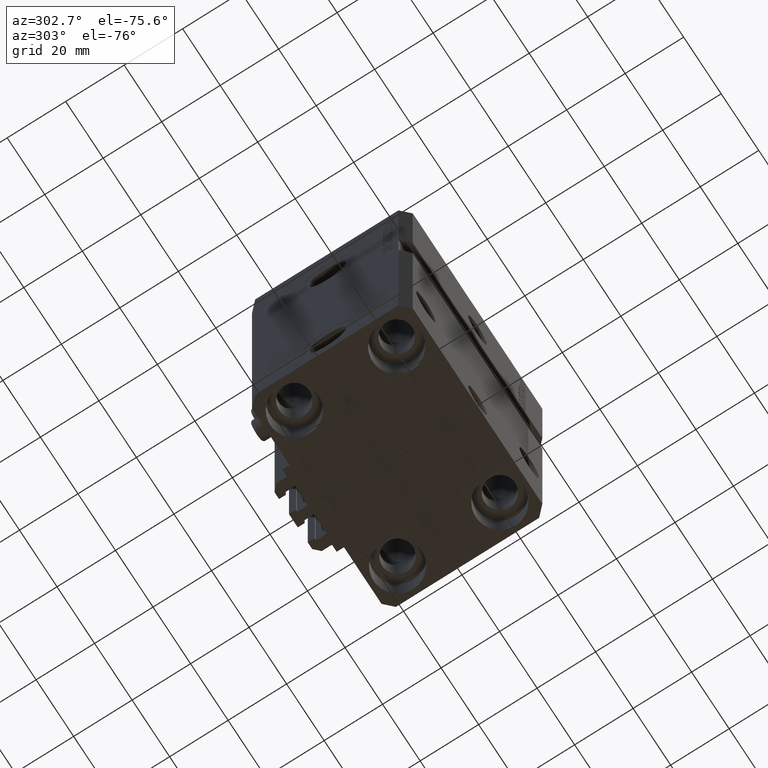
[diagram: clean part render]
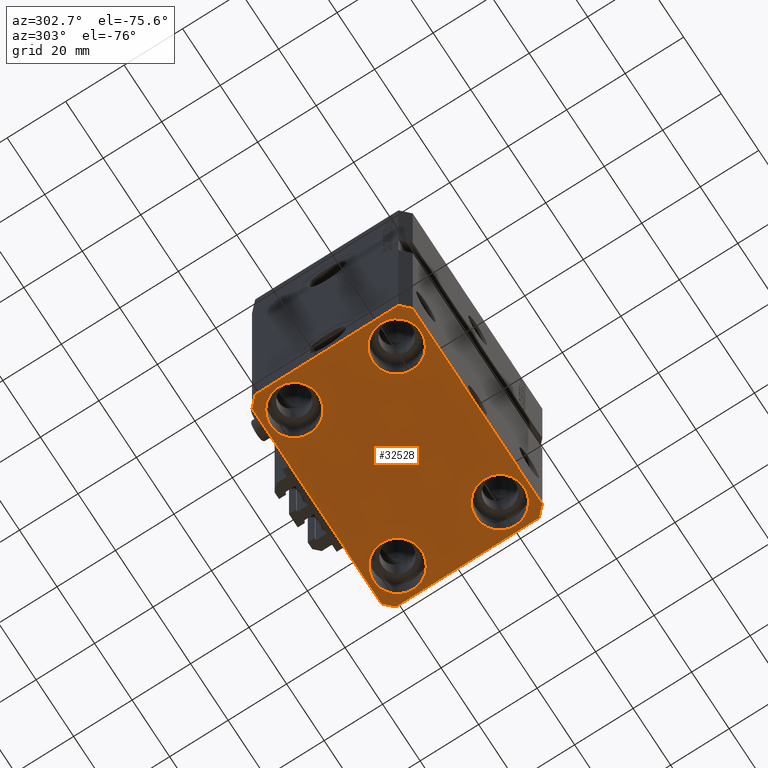
[diagram: same view with one face highlighted and labeled with its STEP entity id]
A machine part, auxiliary view. The second image highlights one B-rep face of the part: STEP entity #32528.
In plain terms, the highlighted planar face has unit normal (0, 0, 1).
Its self-contained STEP definition (entity closure, byte-faithful):
#74 = VECTOR ( 'NONE', #9574, 1000.000000000000000 ) ;
#427 = ORIENTED_EDGE ( 'NONE', *, *, #6526, .F. ) ;
#574 = VERTEX_POINT ( 'NONE', #12457 ) ;
#763 = CARTESIAN_POINT ( 'NONE',  ( -37.49999999999999289, -24.50000000000000000, -110.0000000000000000 ) ) ;
#1101 = CARTESIAN_POINT ( 'NONE',  ( -34.49999999999999289, 27.50000000000000000, -110.0000000000000000 ) ) ;
#1494 = CARTESIAN_POINT ( 'NONE',  ( -37.49999999999999289, -24.50000000000000000, -110.0000000000000000 ) ) ;
#1673 = CARTESIAN_POINT ( 'NONE',  ( 35.75000000000000711, -17.50000000000000000, -110.0000000000000000 ) ) ;
#2033 = VERTEX_POINT ( 'NONE', #32336 ) ;
#2881 = DIRECTION ( 'NONE',  ( 1.000000000000000000, 0.000000000000000000, 0.000000000000000000 ) ) ;
#2912 = ORIENTED_EDGE ( 'NONE', *, *, #33760, .T. ) ;
#3449 = CARTESIAN_POINT ( 'NONE',  ( -35.75000000000000711, -17.50000000000000000, -110.0000000000000000 ) ) ;
#3776 = EDGE_CURVE ( 'NONE', #41774, #2033, #34781, .T. ) ;
#3999 = FACE_BOUND ( 'NONE', #33641, .T. ) ;
#4011 = CARTESIAN_POINT ( 'NONE',  ( -34.49999999999998579, -27.49999999999999645, -110.0000000000000000 ) ) ;
#4532 = VECTOR ( 'NONE', #14556, 1000.000000000000000 ) ;
#4538 = LINE ( 'NONE', #38543, #32400 ) ;
#4619 = AXIS2_PLACEMENT_3D ( 'NONE', #6695, #10751, #40700 ) ;
#4689 = EDGE_CURVE ( 'NONE', #25560, #24895, #4538, .T. ) ;
#5194 = LINE ( 'NONE', #22932, #4532 ) ;
#5530 = CIRCLE ( 'NONE', #30662, 8.250000000000000000 ) ;
#5557 = DIRECTION ( 'NONE',  ( 1.000000000000000000, 0.000000000000000000, 0.000000000000000000 ) ) ;
#5605 = EDGE_CURVE ( 'NONE', #24895, #20968, #9606, .T. ) ;
#5787 = CIRCLE ( 'NONE', #17132, 8.249999999999992895 ) ;
#5964 = CARTESIAN_POINT ( 'NONE',  ( 27.50000000000000355, -17.50000000000000000, -110.0000000000000000 ) ) ;
#6015 = LINE ( 'NONE', #44315, #74 ) ;
#6319 = ORIENTED_EDGE ( 'NONE', *, *, #5605, .F. ) ;
#6406 = CARTESIAN_POINT ( 'NONE',  ( -19.25000000000000355, 17.50000000000000000, -110.0000000000000000 ) ) ;
#6526 = EDGE_CURVE ( 'NONE', #47091, #40100, #40112, .T. ) ;
#6631 = AXIS2_PLACEMENT_3D ( 'NONE', #30274, #49045, #2881 ) ;
#6695 = CARTESIAN_POINT ( 'NONE',  ( -27.50000000000000355, -17.50000000000000000, -110.0000000000000000 ) ) ;
#7135 = EDGE_CURVE ( 'NONE', #2033, #41774, #7430, .T. ) ;
#7430 = CIRCLE ( 'NONE', #6631, 8.250000000000000000 ) ;
#9454 = CARTESIAN_POINT ( 'NONE',  ( -34.49999999999998579, -27.49999999999999645, -110.0000000000000000 ) ) ;
#9574 = DIRECTION ( 'NONE',  ( -1.000000000000000000, 0.000000000000000000, 0.000000000000000000 ) ) ;
#9606 = LINE ( 'NONE', #1494, #12969 ) ;
#10216 = ORIENTED_EDGE ( 'NONE', *, *, #43277, .T. ) ;
#10729 = CARTESIAN_POINT ( 'NONE',  ( 37.50000000000051870, 24.49999999999995381, -110.0000000000000000 ) ) ;
#10751 = DIRECTION ( 'NONE',  ( -0.000000000000000000, -0.000000000000000000, 1.000000000000000000 ) ) ;
#11398 = DIRECTION ( 'NONE',  ( 0.000000000000000000, -1.000000000000000000, 0.000000000000000000 ) ) ;
#11750 = CARTESIAN_POINT ( 'NONE',  ( -37.49999999999999289, 24.50000000000000000, -110.0000000000000000 ) ) ;
#11857 = PLANE ( 'NONE',  #39952 ) ;
#12457 = CARTESIAN_POINT ( 'NONE',  ( -19.25000000000000355, -17.50000000000000000, -110.0000000000000000 ) ) ;
#12969 = VECTOR ( 'NONE', #17220, 1000.000000000000000 ) ;
#13221 = DIRECTION ( 'NONE',  ( 0.7071067811865474617, 0.7071067811865474617, 0.000000000000000000 ) ) ;
#13635 = CARTESIAN_POINT ( 'NONE',  ( -27.50000000000000355, 17.50000000000000000, -110.0000000000000000 ) ) ;
#14556 = DIRECTION ( 'NONE',  ( 1.076236605503979380E-14, 1.000000000000000000, 0.000000000000000000 ) ) ;
#14583 = VECTOR ( 'NONE', #13221, 1000.000000000000114 ) ;
#14831 = DIRECTION ( 'NONE',  ( -0.000000000000000000, -0.000000000000000000, 1.000000000000000000 ) ) ;
#15094 = ORIENTED_EDGE ( 'NONE', *, *, #19192, .T. ) ;
#15162 = FACE_BOUND ( 'NONE', #31225, .T. ) ;
#16526 = VERTEX_POINT ( 'NONE', #49862 ) ;
#16754 = CIRCLE ( 'NONE', #4619, 8.250000000000000000 ) ;
#16884 = AXIS2_PLACEMENT_3D ( 'NONE', #13635, #14831, #34596 ) ;
#17132 = AXIS2_PLACEMENT_3D ( 'NONE', #39658, #20395, #24454 ) ;
#17220 = DIRECTION ( 'NONE',  ( 0.7071067811865483499, -0.7071067811865466846, 0.000000000000000000 ) ) ;
#17334 = EDGE_CURVE ( 'NONE', #45841, #49371, #41801, .T. ) ;
#17449 = ORIENTED_EDGE ( 'NONE', *, *, #22625, .T. ) ;
#17458 = ORIENTED_EDGE ( 'NONE', *, *, #7135, .T. ) ;
#17556 = EDGE_CURVE ( 'NONE', #40100, #20591, #5194, .T. ) ;
#19192 = EDGE_CURVE ( 'NONE', #47591, #574, #41063, .T. ) ;
#19483 = CARTESIAN_POINT ( 'NONE',  ( 0.000000000000000000, 0.000000000000000000, -110.0000000000000000 ) ) ;
#19515 = ORIENTED_EDGE ( 'NONE', *, *, #3776, .T. ) ;
#19974 = FACE_OUTER_BOUND ( 'NONE', #21503, .T. ) ;
#20331 = CARTESIAN_POINT ( 'NONE',  ( 34.50000000000056843, 27.50000000000000000, -110.0000000000000000 ) ) ;
#20395 = DIRECTION ( 'NONE',  ( -0.000000000000000000, -0.000000000000000000, 1.000000000000000000 ) ) ;
#20591 = VERTEX_POINT ( 'NONE', #27057 ) ;
#20968 = VERTEX_POINT ( 'NONE', #9454 ) ;
#21006 = AXIS2_PLACEMENT_3D ( 'NONE', #5964, #36663, #35906 ) ;
#21045 = CARTESIAN_POINT ( 'NONE',  ( -27.50000000000000355, 17.50000000000000000, -110.0000000000000000 ) ) ;
#21248 = DIRECTION ( 'NONE',  ( 1.000000000000000000, 0.000000000000000000, 0.000000000000000000 ) ) ;
#21503 = EDGE_LOOP ( 'NONE', ( #30377, #47569, #23022, #427, #44272, #6319, #45262, #33620 ) ) ;
#21567 = DIRECTION ( 'NONE',  ( -0.7071067811865471286, -0.7071067811865479058, 0.000000000000000000 ) ) ;
#22625 = EDGE_CURVE ( 'NONE', #16526, #50101, #46864, .T. ) ;
#22760 = ORIENTED_EDGE ( 'NONE', *, *, #36855, .T. ) ;
#22932 = CARTESIAN_POINT ( 'NONE',  ( 37.49999999999999289, -24.50000000000000000, -110.0000000000000000 ) ) ;
#23022 = ORIENTED_EDGE ( 'NONE', *, *, #17556, .F. ) ;
#23098 = EDGE_LOOP ( 'NONE', ( #15094, #2912 ) ) ;
#24149 = CARTESIAN_POINT ( 'NONE',  ( 34.49999999999999289, -27.49999999999999645, -110.0000000000000000 ) ) ;
#24454 = DIRECTION ( 'NONE',  ( 1.000000000000000000, 0.000000000000000000, 0.000000000000000000 ) ) ;
#24895 = VERTEX_POINT ( 'NONE', #763 ) ;
#25560 = VERTEX_POINT ( 'NONE', #11750 ) ;
#27057 = CARTESIAN_POINT ( 'NONE',  ( 37.50000000000051870, 24.49999999999995381, -110.0000000000000000 ) ) ;
#27107 = DIRECTION ( 'NONE',  ( 1.000000000000000000, 0.000000000000000000, 0.000000000000000000 ) ) ;
#30274 = CARTESIAN_POINT ( 'NONE',  ( 27.50000000000000355, -17.50000000000000000, -110.0000000000000000 ) ) ;
#30377 = ORIENTED_EDGE ( 'NONE', *, *, #31034, .F. ) ;
#30381 = VERTEX_POINT ( 'NONE', #44808 ) ;
#30662 = AXIS2_PLACEMENT_3D ( 'NONE', #21045, #40559, #5557 ) ;
#31034 = EDGE_CURVE ( 'NONE', #43532, #30381, #6015, .T. ) ;
#31225 = EDGE_LOOP ( 'NONE', ( #17449, #22760 ) ) ;
#31393 = LINE ( 'NONE', #4011, #40685 ) ;
#32336 = CARTESIAN_POINT ( 'NONE',  ( 19.25000000000000000, -17.50000000000000000, -110.0000000000000000 ) ) ;
#32400 = VECTOR ( 'NONE', #11398, 1000.000000000000000 ) ;
#32528 = ADVANCED_FACE ( 'NONE', ( #39244, #3999, #35192, #15162, #19974 ), #11857, .F. ) ;
#33620 = ORIENTED_EDGE ( 'NONE', *, *, #41266, .F. ) ;
#33641 = EDGE_LOOP ( 'NONE', ( #17458, #19515 ) ) ;
#33760 = EDGE_CURVE ( 'NONE', #574, #47591, #16754, .T. ) ;
#33798 = LINE ( 'NONE', #10729, #46220 ) ;
#34596 = DIRECTION ( 'NONE',  ( 1.000000000000000000, 0.000000000000000000, 0.000000000000000000 ) ) ;
#34781 = CIRCLE ( 'NONE', #21006, 8.250000000000000000 ) ;
#34946 = DIRECTION ( 'NONE',  ( 0.000000000000000000, 0.000000000000000000, 1.000000000000000000 ) ) ;
#35192 = FACE_BOUND ( 'NONE', #37707, .T. ) ;
#35906 = DIRECTION ( 'NONE',  ( 1.000000000000000000, 0.000000000000000000, 0.000000000000000000 ) ) ;
#36663 = DIRECTION ( 'NONE',  ( -0.000000000000000000, -0.000000000000000000, 1.000000000000000000 ) ) ;
#36855 = EDGE_CURVE ( 'NONE', #50101, #16526, #5530, .T. ) ;
#37193 = DIRECTION ( 'NONE',  ( -0.000000000000000000, -0.000000000000000000, 1.000000000000000000 ) ) ;
#37707 = EDGE_LOOP ( 'NONE', ( #38289, #10216 ) ) ;
#38289 = ORIENTED_EDGE ( 'NONE', *, *, #17334, .T. ) ;
#38543 = CARTESIAN_POINT ( 'NONE',  ( -37.49999999999999289, 24.50000000000000000, -110.0000000000000000 ) ) ;
#39004 = DIRECTION ( 'NONE',  ( 1.000000000000000000, 0.000000000000000000, -0.000000000000000000 ) ) ;
#39244 = FACE_BOUND ( 'NONE', #23098, .T. ) ;
#39559 = CARTESIAN_POINT ( 'NONE',  ( 19.25000000000000000, 17.50000000000001066, -110.0000000000000000 ) ) ;
#39658 = CARTESIAN_POINT ( 'NONE',  ( 27.49999999999999645, 17.50000000000001066, -110.0000000000000000 ) ) ;
#39952 = AXIS2_PLACEMENT_3D ( 'NONE', #19483, #34946, #39004 ) ;
#40100 = VERTEX_POINT ( 'NONE', #44992 ) ;
#40112 = LINE ( 'NONE', #24149, #14583 ) ;
#40299 = DIRECTION ( 'NONE',  ( -0.000000000000000000, -0.000000000000000000, 1.000000000000000000 ) ) ;
#40559 = DIRECTION ( 'NONE',  ( -0.000000000000000000, -0.000000000000000000, 1.000000000000000000 ) ) ;
#40685 = VECTOR ( 'NONE', #27107, 1000.000000000000000 ) ;
#40700 = DIRECTION ( 'NONE',  ( 1.000000000000000000, 0.000000000000000000, 0.000000000000000000 ) ) ;
#40834 = LINE ( 'NONE', #1101, #47837 ) ;
#41063 = CIRCLE ( 'NONE', #45912, 8.250000000000000000 ) ;
#41266 = EDGE_CURVE ( 'NONE', #30381, #25560, #40834, .T. ) ;
#41774 = VERTEX_POINT ( 'NONE', #1673 ) ;
#41801 = CIRCLE ( 'NONE', #44226, 8.249999999999992895 ) ;
#43277 = EDGE_CURVE ( 'NONE', #49371, #45841, #5787, .T. ) ;
#43532 = VERTEX_POINT ( 'NONE', #20331 ) ;
#44226 = AXIS2_PLACEMENT_3D ( 'NONE', #48127, #37193, #21248 ) ;
#44272 = ORIENTED_EDGE ( 'NONE', *, *, #48386, .F. ) ;
#44315 = CARTESIAN_POINT ( 'NONE',  ( 34.50000000000056843, 27.50000000000000000, -110.0000000000000000 ) ) ;
#44363 = EDGE_CURVE ( 'NONE', #20591, #43532, #33798, .T. ) ;
#44808 = CARTESIAN_POINT ( 'NONE',  ( -34.49999999999999289, 27.50000000000000000, -110.0000000000000000 ) ) ;
#44992 = CARTESIAN_POINT ( 'NONE',  ( 37.49999999999999289, -24.50000000000000000, -110.0000000000000000 ) ) ;
#45262 = ORIENTED_EDGE ( 'NONE', *, *, #4689, .F. ) ;
#45841 = VERTEX_POINT ( 'NONE', #39559 ) ;
#45912 = AXIS2_PLACEMENT_3D ( 'NONE', #48170, #40299, #48667 ) ;
#45973 = DIRECTION ( 'NONE',  ( -0.7071067811865356934, 0.7071067811865594521, 0.000000000000000000 ) ) ;
#46220 = VECTOR ( 'NONE', #45973, 1000.000000000000114 ) ;
#46864 = CIRCLE ( 'NONE', #16884, 8.250000000000000000 ) ;
#46879 = CARTESIAN_POINT ( 'NONE',  ( 35.74999999999999289, 17.50000000000001066, -110.0000000000000000 ) ) ;
#47091 = VERTEX_POINT ( 'NONE', #49787 ) ;
#47569 = ORIENTED_EDGE ( 'NONE', *, *, #44363, .F. ) ;
#47591 = VERTEX_POINT ( 'NONE', #3449 ) ;
#47837 = VECTOR ( 'NONE', #21567, 1000.000000000000000 ) ;
#48127 = CARTESIAN_POINT ( 'NONE',  ( 27.49999999999999645, 17.50000000000001066, -110.0000000000000000 ) ) ;
#48170 = CARTESIAN_POINT ( 'NONE',  ( -27.50000000000000355, -17.50000000000000000, -110.0000000000000000 ) ) ;
#48386 = EDGE_CURVE ( 'NONE', #20968, #47091, #31393, .T. ) ;
#48667 = DIRECTION ( 'NONE',  ( 1.000000000000000000, 0.000000000000000000, 0.000000000000000000 ) ) ;
#49045 = DIRECTION ( 'NONE',  ( -0.000000000000000000, -0.000000000000000000, 1.000000000000000000 ) ) ;
#49371 = VERTEX_POINT ( 'NONE', #46879 ) ;
#49787 = CARTESIAN_POINT ( 'NONE',  ( 34.49999999999999289, -27.49999999999999645, -110.0000000000000000 ) ) ;
#49862 = CARTESIAN_POINT ( 'NONE',  ( -35.75000000000000711, 17.50000000000000000, -110.0000000000000000 ) ) ;
#50101 = VERTEX_POINT ( 'NONE', #6406 ) ;